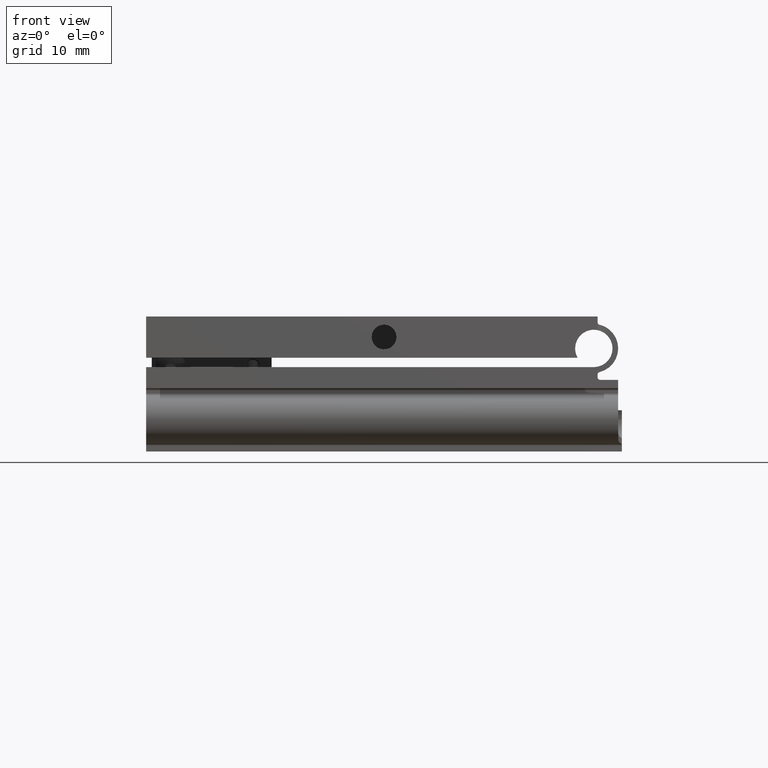
[diagram: clean part render]
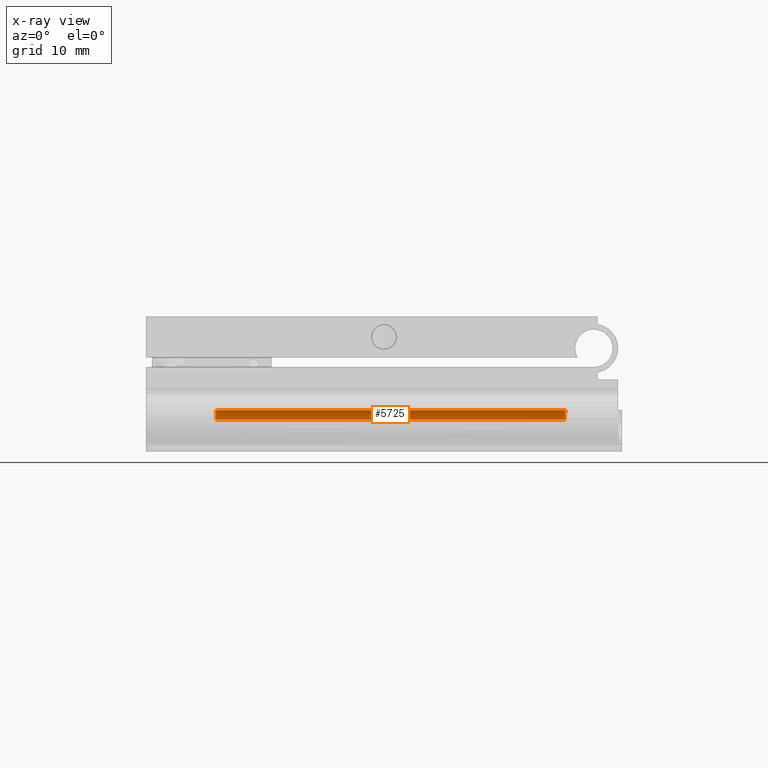
[diagram: x-ray — body ghosted, one internal face saturated and labeled with its STEP entity id]
A machine part, front view, then the same camera in x-ray: the body is ghosted and one INTERNAL B-rep face — a face not visible from any outside direction — is saturated and labeled: STEP entity #5725.
In plain terms, the highlighted cylindrical surface (edge-blend (fillet) strip) has radius 2.5 mm, axis along (1, -0, 0).
Its self-contained STEP definition (entity closure, byte-faithful):
#674 = CARTESIAN_POINT ( 'NONE',  ( 25.83493649053891517, -3.499999999999999556, -24.22810826046189092 ) ) ;
#926 = VERTEX_POINT ( 'NONE', #9528 ) ;
#1682 = CARTESIAN_POINT ( 'NONE',  ( 25.52886771209601946, -4.312813529121743095, 22.40223336111986185 ) ) ;
#1927 = ORIENTED_EDGE ( 'NONE', *, *, #4488, .T. ) ;
#2025 = CYLINDRICAL_SURFACE ( 'NONE', #11458, 2.499999999999995115 ) ;
#2174 = CARTESIAN_POINT ( 'NONE',  ( 25.50000000000000711, -4.749999999999999112, 31.75000000000000000 ) ) ;
#2409 = DIRECTION ( 'NONE',  ( -1.000000000000000000, 0.000000000000000000, 0.000000000000000000 ) ) ;
#2882 = ORIENTED_EDGE ( 'NONE', *, *, #6888, .T. ) ;
#3721 = EDGE_CURVE ( 'NONE', #7126, #4747, #13052, .T. ) ;
#3765 = CARTESIAN_POINT ( 'NONE',  ( 25.64199486141324158, -3.891257570025209223, 22.40923919454377256 ) ) ;
#4105 = LINE ( 'NONE', #8235, #9573 ) ;
#4169 = B_SPLINE_CURVE_WITH_KNOTS ( 'NONE', 3,
 ( #6819, #10923, #3765, #1682, #12889, #5682 ),
 .UNSPECIFIED., .F., .F.,
 ( 4, 2, 4 ),
 ( 3.903127820947815962E-18, 0.0006517680738043165516, 0.001303536147608629200 ),
 .UNSPECIFIED. ) ;
#4296 = ORIENTED_EDGE ( 'NONE', *, *, #3721, .T. ) ;
#4488 = EDGE_CURVE ( 'NONE', #6345, #7126, #4169, .T. ) ;
#4747 = VERTEX_POINT ( 'NONE', #6123 ) ;
#4788 = CARTESIAN_POINT ( 'NONE',  ( 25.50000000000001066, -4.531724102761596207, -24.15400642056230751 ) ) ;
#5605 = CARTESIAN_POINT ( 'NONE',  ( 25.50000000000000711, -4.749999999999999112, 22.40166712988701647 ) ) ;
#5682 = CARTESIAN_POINT ( 'NONE',  ( 25.50000000000000711, -4.749999999999999112, 22.40166712988701647 ) ) ;
#5687 = CARTESIAN_POINT ( 'NONE',  ( 25.72610889409127566, -3.688494926312904543, -24.18771793149545957 ) ) ;
#5725 = ADVANCED_FACE ( 'NONE', ( #11266 ), #2025, .F. ) ;
#6123 = CARTESIAN_POINT ( 'NONE',  ( 25.50000000000000711, -4.749999999999999112, -24.15400642056230396 ) ) ;
#6155 = CARTESIAN_POINT ( 'NONE',  ( 28.00000000000000355, -4.749999999999999112, 31.75000000000000000 ) ) ;
#6345 = VERTEX_POINT ( 'NONE', #6589 ) ;
#6589 = CARTESIAN_POINT ( 'NONE',  ( 25.83493649053891517, -3.499999999999999556, 22.43169572833281933 ) ) ;
#6819 = CARTESIAN_POINT ( 'NONE',  ( 25.83493649053891517, -3.499999999999999556, 22.43169572833281933 ) ) ;
#6888 = EDGE_CURVE ( 'NONE', #4747, #926, #9954, .T. ) ;
#7095 = EDGE_CURVE ( 'NONE', #6345, #926, #4105, .T. ) ;
#7126 = VERTEX_POINT ( 'NONE', #5605 ) ;
#7229 = DIRECTION ( 'NONE',  ( -0.000000000000000000, -0.000000000000000000, -1.000000000000000000 ) ) ;
#7294 = VECTOR ( 'NONE', #10464, 1000.000000000000000 ) ;
#8215 = ORIENTED_EDGE ( 'NONE', *, *, #7095, .F. ) ;
#8235 = CARTESIAN_POINT ( 'NONE',  ( 25.83493649053891517, -3.499999999999999556, 31.75000000000000000 ) ) ;
#8554 = DIRECTION ( 'NONE',  ( -0.000000000000000000, -0.000000000000000000, -1.000000000000000000 ) ) ;
#9528 = CARTESIAN_POINT ( 'NONE',  ( 25.83493649053891517, -3.499999999999999556, -24.22810826046189092 ) ) ;
#9573 = VECTOR ( 'NONE', #7229, 1000.000000000000000 ) ;
#9910 = CARTESIAN_POINT ( 'NONE',  ( 25.50000000000000711, -4.749999999999999112, -24.15400642056230396 ) ) ;
#9954 = B_SPLINE_CURVE_WITH_KNOTS ( 'NONE', 3,
 ( #9910, #4788, #10855, #13026, #5687, #674 ),
 .UNSPECIFIED., .F., .F.,
 ( 4, 2, 4 ),
 ( 0.007558376911395927808, 0.008214147610746192971, 0.008869918310096458133 ),
 .UNSPECIFIED. ) ;
#10464 = DIRECTION ( 'NONE',  ( -0.000000000000000000, -0.000000000000000000, -1.000000000000000000 ) ) ;
#10855 = CARTESIAN_POINT ( 'NONE',  ( 25.52882350125147681, -4.312583512091828553, -24.15532472994664204 ) ) ;
#10923 = CARTESIAN_POINT ( 'NONE',  ( 25.72499092738336302, -3.690431301452173685, 22.41558574330007048 ) ) ;
#11266 = FACE_OUTER_BOUND ( 'NONE', #12289, .T. ) ;
#11458 = AXIS2_PLACEMENT_3D ( 'NONE', #6155, #8554, #2409 ) ;
#12289 = EDGE_LOOP ( 'NONE', ( #1927, #4296, #2882, #8215 ) ) ;
#12889 = CARTESIAN_POINT ( 'NONE',  ( 25.50000000000000711, -4.532627630407302988, 22.40166712988701647 ) ) ;
#13026 = CARTESIAN_POINT ( 'NONE',  ( 25.64264614160105893, -3.889227522423865047, -24.17242724357242523 ) ) ;
#13052 = LINE ( 'NONE', #2174, #7294 ) ;